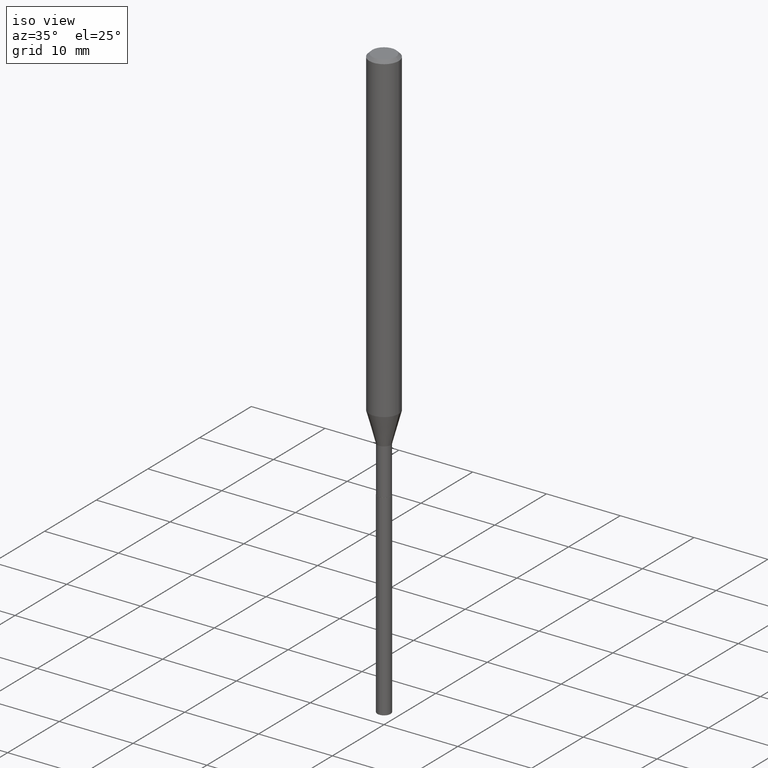
[diagram: clean part render]
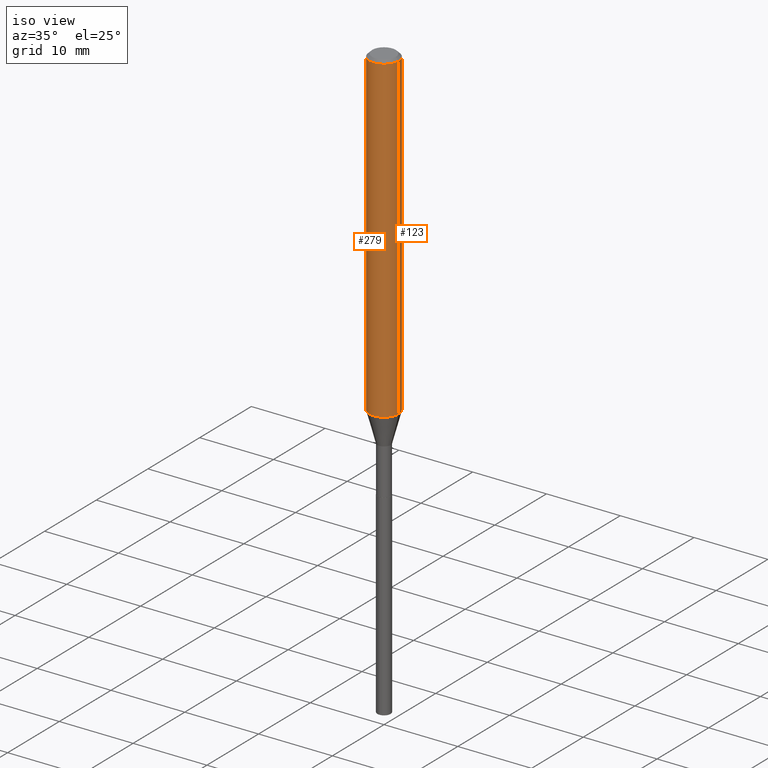
[diagram: same view with one multi-face feature highlighted, each face labeled with its STEP entity id]
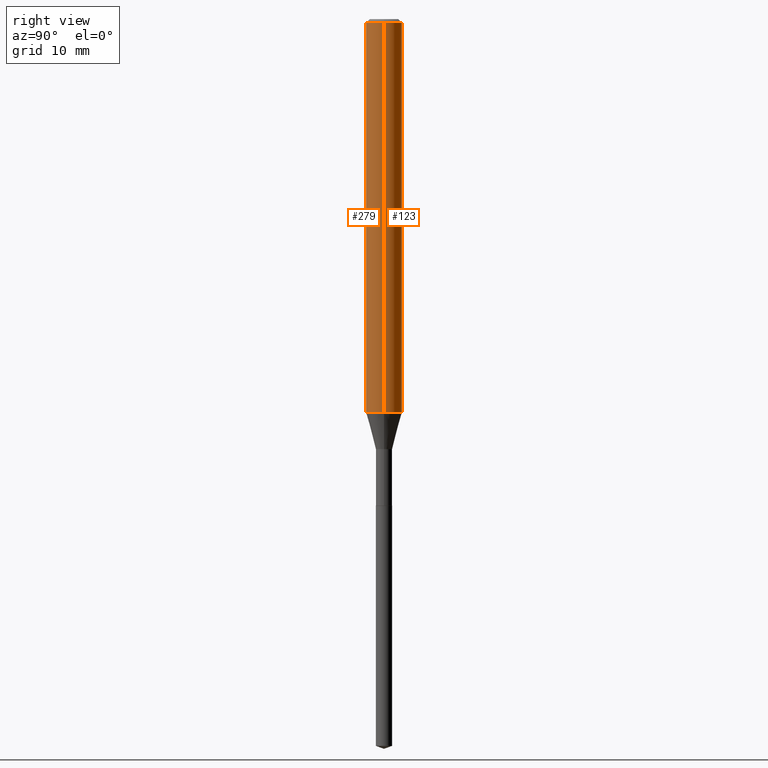
[diagram: same view with one multi-face feature highlighted, each face labeled with its STEP entity id]
A machine part, iso view. The highlighted faces form ONE feature: a constant-radius fillet chain: 2 tangent blend faces with common blend radius 2.0003 mm. The faces share edges in the B-rep.
A second angle (right view) of the same feature is appended — it is thin or edge-on in the first view.
Their STEP definitions:
[1] entity #123 (Cylinder):
#32 = DIRECTION ( 'NONE',  ( 1.000000000000000000, -6.982962677686265922E-15, 0.000000000000000000 ) ) ;
#44 = CIRCLE ( 'NONE', #196, 0.07875000000000022260 ) ;
#48 = LINE ( 'NONE', #429, #255 ) ;
#51 = VECTOR ( 'NONE', #217, 39.37007874015748143 ) ;
#53 = CARTESIAN_POINT ( 'NONE',  ( 0.07875000000000000056, -6.048991419545733705E-16, -0.01575000000000009726 ) ) ;
#54 = EDGE_CURVE ( 'NONE', #465, #181, #48, .T. ) ;
#61 = LINE ( 'NONE', #412, #51 ) ;
#79 = ORIENTED_EDGE ( 'NONE', *, *, #311, .T. ) ;
#88 = DIRECTION ( 'NONE',  ( -2.445468806185136597E-29, 3.491481338843145583E-15, 1.000000000000000000 ) ) ;
#103 = ORIENTED_EDGE ( 'NONE', *, *, #54, .T. ) ;
#123 = ADVANCED_FACE ( 'NONE', ( #283 ), #233, .T. ) ;
#126 = CARTESIAN_POINT ( 'NONE',  ( -0.07875000000000022260, -5.437423624557511400E-15, -1.717602200032267268 ) ) ;
#139 = EDGE_CURVE ( 'NONE', #361, #482, #61, .T. ) ;
#147 = EDGE_LOOP ( 'NONE', ( #79, #103, #469, #239 ) ) ;
#177 = CARTESIAN_POINT ( 'NONE',  ( 3.851613369741614361E-31, -5.499083108677988307E-17, -0.01575000000000009726 ) ) ;
#180 = AXIS2_PLACEMENT_3D ( 'NONE', #177, #331, #315 ) ;
#181 = VERTEX_POINT ( 'NONE', #336 ) ;
#188 = DIRECTION ( 'NONE',  ( -2.445468806185136597E-29, 3.491481338843145583E-15, 1.000000000000000000 ) ) ;
#196 = AXIS2_PLACEMENT_3D ( 'NONE', #203, #88, #32 ) ;
#203 = CARTESIAN_POINT ( 'NONE',  ( 4.200342601613872805E-29, -5.996976028968592568E-15, -1.717602200032267268 ) ) ;
#217 = DIRECTION ( 'NONE',  ( -2.445468806185136877E-29, 3.491481338843145188E-15, 1.000000000000000000 ) ) ;
#233 = CYLINDRICAL_SURFACE ( 'NONE', #372, 0.07875000000000011158 ) ;
#239 = ORIENTED_EDGE ( 'NONE', *, *, #139, .F. ) ;
#255 = VECTOR ( 'NONE', #460, 39.37007874015748143 ) ;
#263 = CIRCLE ( 'NONE', #180, 0.07875000000000000056 ) ;
#283 = FACE_OUTER_BOUND ( 'NONE', #147, .T. ) ;
#306 = EDGE_CURVE ( 'NONE', #482, #181, #263, .T. ) ;
#311 = EDGE_CURVE ( 'NONE', #361, #465, #44, .T. ) ;
#315 = DIRECTION ( 'NONE',  ( 1.000000000000000000, -6.982962677686265922E-15, 0.000000000000000000 ) ) ;
#331 = DIRECTION ( 'NONE',  ( -2.445468806185136597E-29, 3.491481338843145583E-15, 1.000000000000000000 ) ) ;
#336 = CARTESIAN_POINT ( 'NONE',  ( -0.07875000000000000056, -2.466431025616605177E-15, -0.01575000000000009726 ) ) ;
#361 = VERTEX_POINT ( 'NONE', #408 ) ;
#372 = AXIS2_PLACEMENT_3D ( 'NONE', #379, #188, #488 ) ;
#379 = CARTESIAN_POINT ( 'NONE',  ( 0.000000000000000000, 0.000000000000000000, 0.000000000000000000 ) ) ;
#408 = CARTESIAN_POINT ( 'NONE',  ( 0.07875000000000022260, -6.546884339836387492E-15, -1.717602200032267268 ) ) ;
#412 = CARTESIAN_POINT ( 'NONE',  ( 0.07875000000000011158, -5.499083108677943318E-16, 3.839989210939305322E-30 ) ) ;
#429 = CARTESIAN_POINT ( 'NONE',  ( -0.07875000000000011158, 5.595524044110796892E-16, -3.873661383575744098E-30 ) ) ;
#460 = DIRECTION ( 'NONE',  ( -2.445468806185136877E-29, 3.491481338843145188E-15, 1.000000000000000000 ) ) ;
#465 = VERTEX_POINT ( 'NONE', #126 ) ;
#469 = ORIENTED_EDGE ( 'NONE', *, *, #306, .F. ) ;
#482 = VERTEX_POINT ( 'NONE', #53 ) ;
#488 = DIRECTION ( 'NONE',  ( 1.000000000000000000, -6.982962677686267499E-15, 4.876176775795936353E-29 ) ) ;
[2] entity #279 (Cylinder):
#2 = DIRECTION ( 'NONE',  ( -2.445468806185136597E-29, 3.491481338843145583E-15, 1.000000000000000000 ) ) ;
#34 = ORIENTED_EDGE ( 'NONE', *, *, #139, .T. ) ;
#48 = LINE ( 'NONE', #429, #255 ) ;
#51 = VECTOR ( 'NONE', #217, 39.37007874015748143 ) ;
#53 = CARTESIAN_POINT ( 'NONE',  ( 0.07875000000000000056, -6.048991419545733705E-16, -0.01575000000000009726 ) ) ;
#54 = EDGE_CURVE ( 'NONE', #465, #181, #48, .T. ) ;
#57 = DIRECTION ( 'NONE',  ( 1.000000000000000000, -6.982962677686267499E-15, 4.876176775795936353E-29 ) ) ;
#61 = LINE ( 'NONE', #412, #51 ) ;
#114 = DIRECTION ( 'NONE',  ( 1.000000000000000000, -6.982962677686265922E-15, 0.000000000000000000 ) ) ;
#126 = CARTESIAN_POINT ( 'NONE',  ( -0.07875000000000022260, -5.437423624557511400E-15, -1.717602200032267268 ) ) ;
#134 = AXIS2_PLACEMENT_3D ( 'NONE', #483, #141, #57 ) ;
#137 = ORIENTED_EDGE ( 'NONE', *, *, #403, .T. ) ;
#139 = EDGE_CURVE ( 'NONE', #361, #482, #61, .T. ) ;
#141 = DIRECTION ( 'NONE',  ( -2.445468806185136597E-29, 3.491481338843145583E-15, 1.000000000000000000 ) ) ;
#172 = CIRCLE ( 'NONE', #478, 0.07875000000000022260 ) ;
#181 = VERTEX_POINT ( 'NONE', #336 ) ;
#200 = ORIENTED_EDGE ( 'NONE', *, *, #396, .F. ) ;
#217 = DIRECTION ( 'NONE',  ( -2.445468806185136877E-29, 3.491481338843145188E-15, 1.000000000000000000 ) ) ;
#255 = VECTOR ( 'NONE', #460, 39.37007874015748143 ) ;
#279 = ADVANCED_FACE ( 'NONE', ( #292 ), #406, .T. ) ;
#292 = FACE_OUTER_BOUND ( 'NONE', #392, .T. ) ;
#305 = DIRECTION ( 'NONE',  ( 1.000000000000000000, -6.982962677686265922E-15, 0.000000000000000000 ) ) ;
#309 = CARTESIAN_POINT ( 'NONE',  ( 3.851613369741614361E-31, -5.499083108677988307E-17, -0.01575000000000009726 ) ) ;
#336 = CARTESIAN_POINT ( 'NONE',  ( -0.07875000000000000056, -2.466431025616605177E-15, -0.01575000000000009726 ) ) ;
#340 = ORIENTED_EDGE ( 'NONE', *, *, #54, .F. ) ;
#361 = VERTEX_POINT ( 'NONE', #408 ) ;
#383 = CARTESIAN_POINT ( 'NONE',  ( 4.200342601613872805E-29, -5.996976028968592568E-15, -1.717602200032267268 ) ) ;
#392 = EDGE_LOOP ( 'NONE', ( #340, #137, #34, #200 ) ) ;
#396 = EDGE_CURVE ( 'NONE', #181, #482, #461, .T. ) ;
#403 = EDGE_CURVE ( 'NONE', #465, #361, #172, .T. ) ;
#406 = CYLINDRICAL_SURFACE ( 'NONE', #134, 0.07875000000000011158 ) ;
#408 = CARTESIAN_POINT ( 'NONE',  ( 0.07875000000000022260, -6.546884339836387492E-15, -1.717602200032267268 ) ) ;
#412 = CARTESIAN_POINT ( 'NONE',  ( 0.07875000000000011158, -5.499083108677943318E-16, 3.839989210939305322E-30 ) ) ;
#415 = AXIS2_PLACEMENT_3D ( 'NONE', #309, #456, #114 ) ;
#429 = CARTESIAN_POINT ( 'NONE',  ( -0.07875000000000011158, 5.595524044110796892E-16, -3.873661383575744098E-30 ) ) ;
#456 = DIRECTION ( 'NONE',  ( -2.445468806185136597E-29, 3.491481338843145583E-15, 1.000000000000000000 ) ) ;
#460 = DIRECTION ( 'NONE',  ( -2.445468806185136877E-29, 3.491481338843145188E-15, 1.000000000000000000 ) ) ;
#461 = CIRCLE ( 'NONE', #415, 0.07875000000000000056 ) ;
#465 = VERTEX_POINT ( 'NONE', #126 ) ;
#478 = AXIS2_PLACEMENT_3D ( 'NONE', #383, #2, #305 ) ;
#482 = VERTEX_POINT ( 'NONE', #53 ) ;
#483 = CARTESIAN_POINT ( 'NONE',  ( 0.000000000000000000, 0.000000000000000000, 0.000000000000000000 ) ) ;